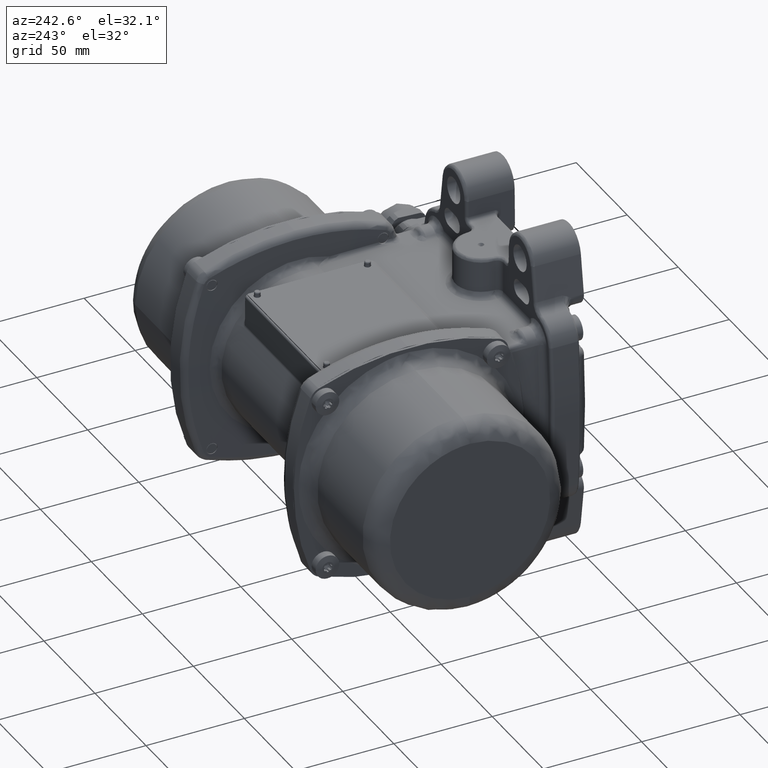
[diagram: clean part render]
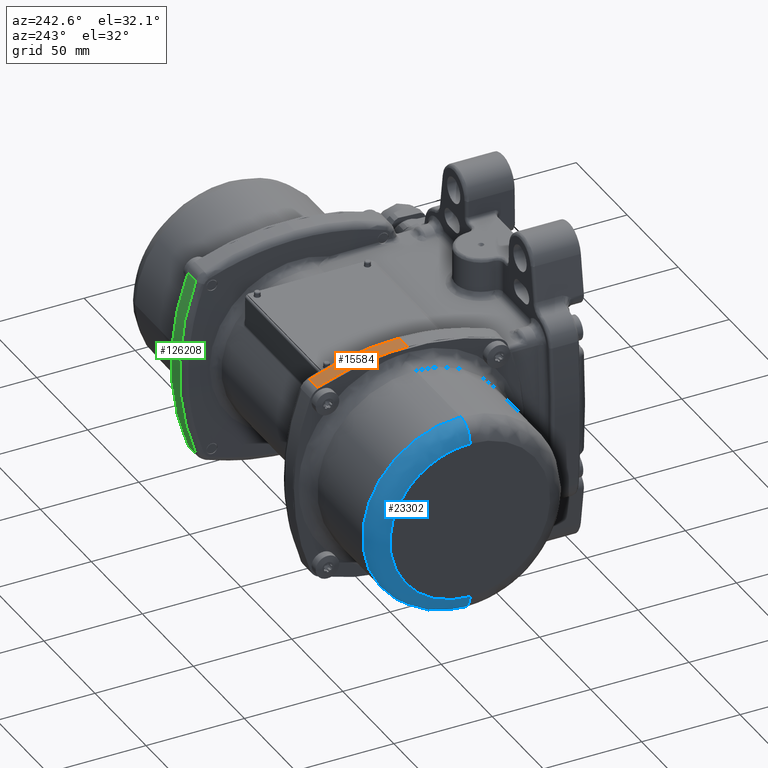
[diagram: same view with three faces highlighted in distinct colors, each labeled with its STEP entity id]
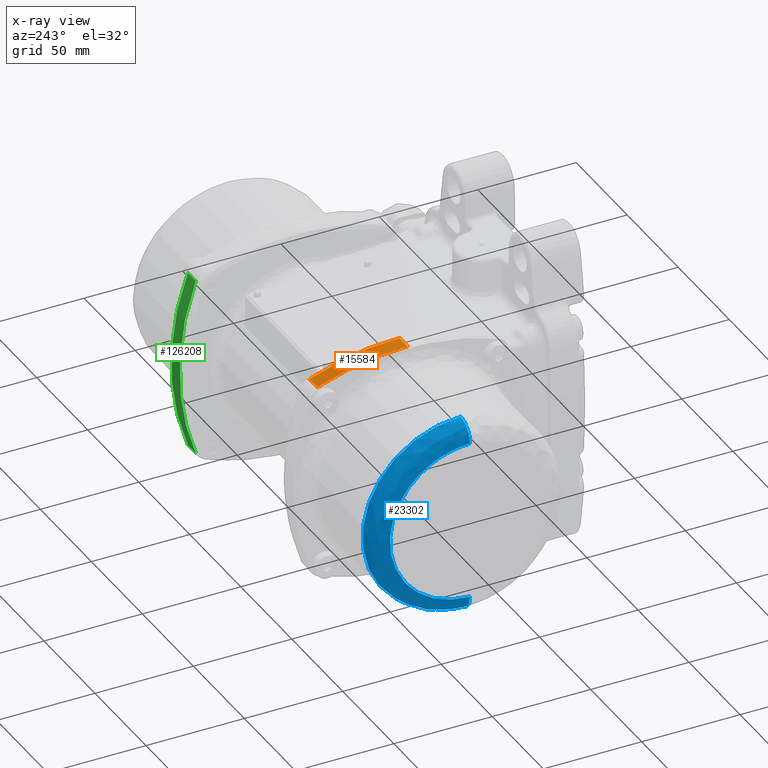
[diagram: x-ray of the same camera — body ghosted, the three highlighted faces saturated]
A machine part, auxiliary view with three faces highlighted in distinct colors.
The next image is the same camera in x-ray (body ghosted, the three faces saturated) — at least one of them is partly hidden behind the body in this view.
Their STEP definitions:

[orange] entity #15584 — the highlighted cylindrical surface (partial cylindrical patch) has radius 129 mm, axis along (1, -0, 0).
#1137 = CARTESIAN_POINT ( 'NONE',  ( -51.42247061277299700, 96.00000000000000000, 58.50000000015500500 ) ) ;
#1414 = VECTOR ( 'NONE', #129002, 1000.000000000000000 ) ;
#3584 = CYLINDRICAL_SURFACE ( 'NONE', #108919, 129.0000000000000000 ) ;
#4547 = VERTEX_POINT ( 'NONE', #5706 ) ;
#5706 = CARTESIAN_POINT ( 'NONE',  ( -59.50000000000000000, 96.00000000000000000, 58.50000000000000700 ) ) ;
#11479 = CARTESIAN_POINT ( 'NONE',  ( -51.60139193829760300, 134.5597084049933900, 52.66421566935270000 ) ) ;
#11971 = CARTESIAN_POINT ( 'NONE',  ( -51.53921369122409900, 127.0327609583802100, 54.77267411939830300 ) ) ;
#12998 = CARTESIAN_POINT ( 'NONE',  ( -51.42247398630970400, 97.97487465752219300, 58.49989616555880200 ) ) ;
#13008 = EDGE_CURVE ( 'NONE', #4547, #106303, #94930, .T. ) ;
#15584 = ADVANCED_FACE ( 'NONE', ( #34948 ), #3584, .T. ) ;
#22446 = VERTEX_POINT ( 'NONE', #138433 ) ;
#22574 = CARTESIAN_POINT ( 'NONE',  ( -70.50000000000000000, 141.9816342187540100, 50.02671618596740200 ) ) ;
#23365 = CARTESIAN_POINT ( 'NONE',  ( -51.42247061277171100, 96.00226472994481200, 58.50000000012928300 ) ) ;
#28065 = EDGE_CURVE ( 'NONE', #22446, #106303, #104835, .T. ) ;
#31732 = CARTESIAN_POINT ( 'NONE',  ( -59.50000000000000000, 141.9816342187540100, 50.02671618596740200 ) ) ;
#32807 = LINE ( 'NONE', #22574, #1414 ) ;
#34948 = FACE_OUTER_BOUND ( 'NONE', #61893, .T. ) ;
#35705 = CARTESIAN_POINT ( 'NONE',  ( -51.42981408446059500, 103.8911304420094000, 58.27349483533709700 ) ) ;
#48092 = CARTESIAN_POINT ( 'NONE',  ( -51.51236919346389700, 123.2346696412456000, 55.65252669724360100 ) ) ;
#48566 = CARTESIAN_POINT ( 'NONE',  ( -51.42247061277299700, 96.00000000000000000, 58.50000000015500500 ) ) ;
#52156 = DIRECTION ( 'NONE',  ( 0.0000000000000000000, 0.0000000000000000000, 1.000000000000000000 ) ) ;
#54668 = ORIENTED_EDGE ( 'NONE', *, *, #13008, .T. ) ;
#55044 = VERTEX_POINT ( 'NONE', #31732 ) ;
#57864 = DIRECTION ( 'NONE',  ( 1.000000000000000000, -1.004618355095570000E-033, 0.0000000000000000000 ) ) ;
#57926 = CARTESIAN_POINT ( 'NONE',  ( -51.63671979496130100, 138.2885947544599800, 51.43563194486500100 ) ) ;
#61893 = EDGE_LOOP ( 'NONE', ( #149899, #54668, #120582, #115006 ) ) ;
#63236 = DIRECTION ( 'NONE',  ( 1.000000000000000000, -1.004618355095570000E-033, 0.0000000000000000000 ) ) ;
#71817 = CARTESIAN_POINT ( 'NONE',  ( -51.42395315197219900, 99.95426530016479200, 58.45443651807919800 ) ) ;
#82007 = VECTOR ( 'NONE', #57864, 1000.000000000000000 ) ;
#88240 = DIRECTION ( 'NONE',  ( 1.000000000000000000, -1.004618355095570000E-033, 0.0000000000000000000 ) ) ;
#88641 = AXIS2_PLACEMENT_3D ( 'NONE', #111581, #88240, #52156 ) ;
#94101 = CARTESIAN_POINT ( 'NONE',  ( -51.45144845972689800, 111.7031035215622000, 57.60059974179079500 ) ) ;
#94930 = LINE ( 'NONE', #150913, #82007 ) ;
#104835 = B_SPLINE_CURVE_WITH_KNOTS ( 'NONE', 3,
 ( #129286, #57926, #11479, #11971, #48092, #130818, #94101, #105974, #35705, #71817, #12998, #141168, #23365, #1137 ),
 .UNSPECIFIED., .F., .F.,
 ( 4, 2, 2, 2, 2, 2, 4 ),
 ( 0.0000000000000000000, 0.2499640445783380100, 0.4999280891566763600, 0.7498921337350140700, 0.8748741560241840600, 0.9998561783133529400, 1.000000000000000000 ),
 .UNSPECIFIED. ) ;
#105974 = CARTESIAN_POINT ( 'NONE',  ( -51.43418756271319800, 105.8506742284850000, 58.13826023329180300 ) ) ;
#106303 = VERTEX_POINT ( 'NONE', #48566 ) ;
#107974 = CIRCLE ( 'NONE', #88641, 129.0000000000000000 ) ;
#108702 = EDGE_CURVE ( 'NONE', #55044, #4547, #107974, .T. ) ;
#108919 = AXIS2_PLACEMENT_3D ( 'NONE', #110262, #63236, #124279 ) ;
#110262 = CARTESIAN_POINT ( 'NONE',  ( -70.50000000000000000, 96.00000000000000000, -70.50000000000000000 ) ) ;
#111581 = CARTESIAN_POINT ( 'NONE',  ( -59.50000000000000000, 96.00000000000000000, -70.50000000000000000 ) ) ;
#115006 = ORIENTED_EDGE ( 'NONE', *, *, #125997, .T. ) ;
#120582 = ORIENTED_EDGE ( 'NONE', *, *, #28065, .F. ) ;
#124279 = DIRECTION ( 'NONE',  ( 0.0000000000000000000, 0.0000000000000000000, 1.000000000000000000 ) ) ;
#125997 = EDGE_CURVE ( 'NONE', #22446, #55044, #32807, .T. ) ;
#129002 = DIRECTION ( 'NONE',  ( -1.000000000000000000, 1.004618355095570000E-033, -0.0000000000000000000 ) ) ;
#129286 = CARTESIAN_POINT ( 'NONE',  ( -51.67570246307530400, 141.9816342187540100, 50.02671618596740200 ) ) ;
#130818 = CARTESIAN_POINT ( 'NONE',  ( -51.46848223554069800, 115.5698404233076100, 57.06648685439620300 ) ) ;
#138433 = CARTESIAN_POINT ( 'NONE',  ( -51.67570246307530400, 141.9816342187540100, 50.02671618596740200 ) ) ;
#141168 = CARTESIAN_POINT ( 'NONE',  ( -51.42247061470272500, 96.00452946837154400, 58.49999994036042500 ) ) ;
#149899 = ORIENTED_EDGE ( 'NONE', *, *, #108702, .T. ) ;
#150913 = CARTESIAN_POINT ( 'NONE',  ( -70.50000000000000000, 96.00000000000000000, 58.50000000000000700 ) ) ;

[blue] entity #23302 — the highlighted face is a freeform B-spline surface patch.
#8304 = VERTEX_POINT ( 'NONE', #106518 ) ;
#8403 = CARTESIAN_POINT ( 'NONE',  ( -120.4999999999999700, 95.99999999999991500, -40.70000000000021600 ) ) ;
#10928 = CARTESIAN_POINT ( 'NONE',  ( -116.6892352261675800, 195.8000000000003000, -49.90000000000042500 ) ) ;
#17457 = CARTESIAN_POINT ( 'NONE',  ( -120.5000000000000000, 96.00000000000000000, -40.70000000000000300 ) ) ;
#18700 = EDGE_CURVE ( 'NONE', #8304, #131584, #20038, .T. ) ;
#20038 = CIRCLE ( 'NONE', #25046, 9.199999999999999300 ) ;
#20262 = CARTESIAN_POINT ( 'NONE',  ( -120.5000000000000900, 188.1784704523353500, -46.08923522616792900 ) ) ;
#23302 = ADVANCED_FACE ( 'NONE', ( #137174 ), #28097, .T. ) ;
#25046 = AXIS2_PLACEMENT_3D ( 'NONE', #86015, #122791, #63284 ) ;
#26969 = DIRECTION ( 'NONE',  ( 1.000000000000000000, 1.213635377677980000E-015, 2.534600298297690200E-016 ) ) ;
#28097 =( BOUNDED_SURFACE ( )  B_SPLINE_SURFACE ( 3, 3, ( 
 ( #102365, #31600, #67214, #8403 ),
 ( #90961, #79566, #20262, #102861 ),
 ( #45515, #104900, #10928, #151949 ),
 ( #58374, #56861, #128233, #82132 ) ),
 .UNSPECIFIED., .F., .F., .F. ) 
 B_SPLINE_SURFACE_WITH_KNOTS ( ( 4, 4 ),
 ( 4, 4 ),
 ( 0.0000000000000000000, 1.000000000000000000 ),
 ( 0.0000000000000000000, 1.000000000000000000 ),
 .UNSPECIFIED. ) 
 GEOMETRIC_REPRESENTATION_ITEM ( )  RATIONAL_B_SPLINE_SURFACE ( (
 ( 1.000000000000000000, 0.3333333333333326500, 0.3333333333333326500, 1.000000000000000000),
 ( 0.8047378541243652700, 0.2682459513747878500, 0.2682459513747878500, 0.8047378541243652700),
 ( 0.8047378541243652700, 0.2682459513747878500, 0.2682459513747878500, 0.8047378541243652700),
 ( 1.000000000000000000, 0.3333333333333326500, 0.3333333333333326500, 1.000000000000000000) ) ) 
 REPRESENTATION_ITEM ( '' )  SURFACE ( )  );
#28099 = EDGE_CURVE ( 'NONE', #76732, #76216, #50939, .T. ) ;
#31600 = CARTESIAN_POINT ( 'NONE',  ( -120.5000000000000900, 177.4000000000003800, 40.69999999999999600 ) ) ;
#32127 = EDGE_CURVE ( 'NONE', #131584, #76216, #57935, .T. ) ;
#38773 = DIRECTION ( 'NONE',  ( 0.0000000000000000000, 0.0000000000000000000, 1.000000000000000000 ) ) ;
#40517 = ORIENTED_EDGE ( 'NONE', *, *, #32127, .F. ) ;
#45515 = CARTESIAN_POINT ( 'NONE',  ( -116.6892352261675100, 96.00000000000000000, 49.89999999999999100 ) ) ;
#50316 = CARTESIAN_POINT ( 'NONE',  ( -111.2999999999999800, 96.00000000000004300, -49.90000000000011200 ) ) ;
#50939 = CIRCLE ( 'NONE', #84260, 9.199999999999999300 ) ;
#52551 = CARTESIAN_POINT ( 'NONE',  ( -120.5000000000001000, 177.4000000000003500, 40.70000000000000300 ) ) ;
#56861 = CARTESIAN_POINT ( 'NONE',  ( -111.3000000000001300, 195.8000000000004100, 49.89999999999999100 ) ) ;
#57935 = CIRCLE ( 'NONE', #93576, 49.89999999999999900 ) ;
#58374 = CARTESIAN_POINT ( 'NONE',  ( -111.3000000000000100, 96.00000000000000000, 49.89999999999999900 ) ) ;
#63284 = DIRECTION ( 'NONE',  ( 0.0000000000000000000, 0.0000000000000000000, -1.000000000000000000 ) ) ;
#65681 = ORIENTED_EDGE ( 'NONE', *, *, #28099, .T. ) ;
#67214 = CARTESIAN_POINT ( 'NONE',  ( -120.5000000000000700, 177.4000000000003200, -40.70000000000035800 ) ) ;
#74755 = CARTESIAN_POINT ( 'NONE',  ( -120.5000000000000000, 96.00000000000000000, 40.70000000000000300 ) ) ;
#76216 = VERTEX_POINT ( 'NONE', #89130 ) ;
#76732 = VERTEX_POINT ( 'NONE', #86814 ) ;
#79566 = CARTESIAN_POINT ( 'NONE',  ( -120.5000000000001100, 188.1784704523354300, 46.08923522616749600 ) ) ;
#81112 = EDGE_LOOP ( 'NONE', ( #144947, #81544, #65681, #40517 ) ) ;
#81544 = ORIENTED_EDGE ( 'NONE', *, *, #133379, .T. ) ;
#82132 = CARTESIAN_POINT ( 'NONE',  ( -111.2999999999999700, 95.99999999999990100, -49.90000000000020500 ) ) ;
#84260 = AXIS2_PLACEMENT_3D ( 'NONE', #85731, #96631, #38773 ) ;
#85731 = CARTESIAN_POINT ( 'NONE',  ( -111.3000000000000000, 96.00000000000000000, 40.70000000000000300 ) ) ;
#86015 = CARTESIAN_POINT ( 'NONE',  ( -111.2999999999999700, 96.00000000000001400, -40.70000000000020900 ) ) ;
#86814 = CARTESIAN_POINT ( 'NONE',  ( -120.5000000000000000, 96.00000000000000000, 40.70000000000000300 ) ) ;
#89130 = CARTESIAN_POINT ( 'NONE',  ( -111.3000000000000100, 96.00000000000000000, 49.89999999999989900 ) ) ;
#90961 = CARTESIAN_POINT ( 'NONE',  ( -120.4999999999999900, 96.00000000000000000, 46.08923522616752400 ) ) ;
#93576 = AXIS2_PLACEMENT_3D ( 'NONE', #98741, #26969, #121514 ) ;
#96631 = DIRECTION ( 'NONE',  ( -1.213635377677980000E-015, 1.000000000000000000, -2.806757854662779800E-017 ) ) ;
#98741 = CARTESIAN_POINT ( 'NONE',  ( -111.3000000000000000, 96.00000000000000000, -1.027586208201325900E-013 ) ) ;
#102365 = CARTESIAN_POINT ( 'NONE',  ( -120.5000000000000000, 95.99999999999998600, 40.70000000000000300 ) ) ;
#102861 = CARTESIAN_POINT ( 'NONE',  ( -120.4999999999999400, 95.99999999999990100, -46.08923522616774400 ) ) ;
#104900 = CARTESIAN_POINT ( 'NONE',  ( -116.6892352261676400, 195.8000000000003800, 49.89999999999999100 ) ) ;
#106518 = CARTESIAN_POINT ( 'NONE',  ( -120.5000000000000000, 96.00000000000000000, -40.70000000000000300 ) ) ;
#121514 = DIRECTION ( 'NONE',  ( -2.781119801165221900E-016, 0.0000000000000000000, 1.000000000000000000 ) ) ;
#122791 = DIRECTION ( 'NONE',  ( 1.213635377677980000E-015, -1.000000000000000000, -9.439710136810752200E-017 ) ) ;
#123402 = CARTESIAN_POINT ( 'NONE',  ( -120.5000000000000700, 177.4000000000002900, -40.70000000000033700 ) ) ;
#124203 =( BOUNDED_CURVE ( )  B_SPLINE_CURVE ( 3, ( #17457, #123402, #52551, #74755 ),
 .UNSPECIFIED., .F., .T. ) 
 B_SPLINE_CURVE_WITH_KNOTS ( ( 4, 4 ),
 ( 0.0000000000000000000, 1.000000000000000000 ),
 .UNSPECIFIED. ) 
 CURVE ( )  GEOMETRIC_REPRESENTATION_ITEM ( )  RATIONAL_B_SPLINE_CURVE ( ( 1.000000000000000000, 0.3333333333333327600, 0.3333333333333327600, 1.000000000000000000 ) ) 
 REPRESENTATION_ITEM ( '' )  );
#128233 = CARTESIAN_POINT ( 'NONE',  ( -111.3000000000000800, 195.8000000000003200, -49.90000000000039600 ) ) ;
#131584 = VERTEX_POINT ( 'NONE', #50316 ) ;
#133379 = EDGE_CURVE ( 'NONE', #8304, #76732, #124203, .T. ) ;
#137174 = FACE_OUTER_BOUND ( 'NONE', #81112, .T. ) ;
#144947 = ORIENTED_EDGE ( 'NONE', *, *, #18700, .F. ) ;
#151949 = CARTESIAN_POINT ( 'NONE',  ( -116.6892352261674800, 95.99999999999990100, -49.90000000000019000 ) ) ;

[green] entity #126208 — the highlighted cylindrical surface (partial cylindrical patch) has radius 129 mm, axis along (1, -0, 0).
#5123 = CYLINDRICAL_SURFACE ( 'NONE', #17854, 129.0000000000000000 ) ;
#6593 = EDGE_CURVE ( 'NONE', #56533, #148637, #116653, .T. ) ;
#7547 = CARTESIAN_POINT ( 'NONE',  ( 51.67570246307540300, 146.0267161859674200, -45.98163421875390400 ) ) ;
#12691 = DIRECTION ( 'NONE',  ( 1.000000000000000000, -1.004618355095570000E-033, 0.0000000000000000000 ) ) ;
#13005 = CARTESIAN_POINT ( 'NONE',  ( 51.51176175067019600, 151.6723454766360000, -27.14310900963255000 ) ) ;
#14741 = DIRECTION ( 'NONE',  ( 0.0000000000000000000, 0.0000000000000000000, 1.000000000000000000 ) ) ;
#17567 = VERTEX_POINT ( 'NONE', #117518 ) ;
#17854 = AXIS2_PLACEMENT_3D ( 'NONE', #106188, #12691, #14741 ) ;
#24759 = LINE ( 'NONE', #27116, #89436 ) ;
#25939 = CARTESIAN_POINT ( 'NONE',  ( 51.45144845972710400, 153.6005997417920000, 15.70310352155050100 ) ) ;
#26924 = CARTESIAN_POINT ( 'NONE',  ( 51.42246388311510000, 154.5002071321225100, -3.929366669194565500 ) ) ;
#27116 = CARTESIAN_POINT ( 'NONE',  ( -70.50000000000000000, 146.0267161859674200, -45.98163421875390400 ) ) ;
#28224 = CARTESIAN_POINT ( 'NONE',  ( 59.50000000000000000, 146.0267161859674200, -45.98163421875390400 ) ) ;
#35501 = EDGE_CURVE ( 'NONE', #17567, #117097, #120276, .T. ) ;
#36002 = DIRECTION ( 'NONE',  ( 0.0000000000000000000, 0.0000000000000000000, 1.000000000000000000 ) ) ;
#38777 = CARTESIAN_POINT ( 'NONE',  ( 51.67570246307540300, 146.0267161859670200, 45.98163421875430100 ) ) ;
#52354 = DIRECTION ( 'NONE',  ( 1.000000000000000000, -1.004618355095570000E-033, 0.0000000000000000000 ) ) ;
#56533 = VERTEX_POINT ( 'NONE', #64038 ) ;
#60459 = CARTESIAN_POINT ( 'NONE',  ( 51.60139193829780200, 148.6642156693562000, 38.55970840497955300 ) ) ;
#60954 = CARTESIAN_POINT ( 'NONE',  ( 51.42247398630989600, 154.4998961655590200, 1.974874657518819900 ) ) ;
#62568 = LINE ( 'NONE', #131038, #119871 ) ;
#64038 = CARTESIAN_POINT ( 'NONE',  ( 51.67570246307540300, 146.0267161859670200, 45.98163421875430100 ) ) ;
#69696 = AXIS2_PLACEMENT_3D ( 'NONE', #106760, #95391, #36002 ) ;
#71590 = FACE_OUTER_BOUND ( 'NONE', #102356, .T. ) ;
#72327 = CARTESIAN_POINT ( 'NONE',  ( 51.51236919346409600, 151.6525266972449800, 27.23466964123800000 ) ) ;
#73344 = CARTESIAN_POINT ( 'NONE',  ( 51.45110505430049800, 153.6113498475334900, -15.61107220956455100 ) ) ;
#74369 = CARTESIAN_POINT ( 'NONE',  ( 51.46800556643569300, 153.0815900200684900, -19.47169786473385100 ) ) ;
#84712 = CARTESIAN_POINT ( 'NONE',  ( 51.43418756271339700, 154.1382602332909900, 9.850674228491419300 ) ) ;
#85225 = CARTESIAN_POINT ( 'NONE',  ( 51.53860866247159600, 150.7928768004455000, -30.95389682305524600 ) ) ;
#89436 = VECTOR ( 'NONE', #52354, 1000.000000000000000 ) ;
#94064 = ORIENTED_EDGE ( 'NONE', *, *, #97072, .T. ) ;
#95299 = DIRECTION ( 'NONE',  ( 1.000000000000000000, -1.004618355095570000E-033, 0.0000000000000000000 ) ) ;
#95391 = DIRECTION ( 'NONE',  ( -1.000000000000000000, 1.004618355095570000E-033, -0.0000000000000000000 ) ) ;
#97072 = EDGE_CURVE ( 'NONE', #56533, #17567, #62568, .T. ) ;
#97156 = CARTESIAN_POINT ( 'NONE',  ( 51.67570246307540300, 146.0267161859674200, -45.98163421875390400 ) ) ;
#97667 = CARTESIAN_POINT ( 'NONE',  ( 51.53921369122429800, 150.7726741193940000, 31.03276095839490300 ) ) ;
#102356 = EDGE_LOOP ( 'NONE', ( #94064, #118366, #147349, #109458 ) ) ;
#106188 = CARTESIAN_POINT ( 'NONE',  ( -70.50000000000000000, 25.50000000000000000, -2.743973290989330200E-013 ) ) ;
#106760 = CARTESIAN_POINT ( 'NONE',  ( 59.50000000000000000, 25.50000000000000000, -2.743973290989330200E-013 ) ) ;
#107987 = CARTESIAN_POINT ( 'NONE',  ( 51.42395315197239800, 154.4544365180794900, 3.954265300161525300 ) ) ;
#108484 = CARTESIAN_POINT ( 'NONE',  ( 51.63675478398970100, 147.4343673681082100, -42.29190945360969800 ) ) ;
#109004 = CARTESIAN_POINT ( 'NONE',  ( 51.63671979496169900, 147.4356319448608000, 42.28859475447065100 ) ) ;
#109458 = ORIENTED_EDGE ( 'NONE', *, *, #6593, .F. ) ;
#114124 = EDGE_CURVE ( 'NONE', #148637, #117097, #24759, .T. ) ;
#116653 = B_SPLINE_CURVE_WITH_KNOTS ( 'NONE', 3,
 ( #38777, #109004, #60459, #97667, #72327, #119441, #25939, #84712, #144212, #107987, #60954, #26924, #132338, #73344, #74369, #13005, #85225, #143185, #108484, #97156 ),
 .UNSPECIFIED., .F., .F.,
 ( 4, 2, 2, 2, 2, 2, 2, 2, 2, 4 ),
 ( 0.0000000000000000000, 0.1250000000000000300, 0.2500000000000002200, 0.3750000000000001100, 0.4375000000000000600, 0.5000000000000005600, 0.6250000000000004400, 0.7500000000000002200, 0.8750000000000001100, 1.000000000000000000 ),
 .UNSPECIFIED. ) ;
#117097 = VERTEX_POINT ( 'NONE', #28224 ) ;
#117518 = CARTESIAN_POINT ( 'NONE',  ( 59.50000000000000000, 146.0267161859670200, 45.98163421875430100 ) ) ;
#118366 = ORIENTED_EDGE ( 'NONE', *, *, #35501, .T. ) ;
#119441 = CARTESIAN_POINT ( 'NONE',  ( 51.46848223554089700, 153.0664868543945000, 19.56984042331605200 ) ) ;
#119871 = VECTOR ( 'NONE', #95299, 1000.000000000000000 ) ;
#120276 = CIRCLE ( 'NONE', #69696, 129.0000000000000000 ) ;
#126208 = ADVANCED_FACE ( 'NONE', ( #71590 ), #5123, .T. ) ;
#131038 = CARTESIAN_POINT ( 'NONE',  ( -70.50000000000000000, 146.0267161859670200, 45.98163421875420200 ) ) ;
#132338 = CARTESIAN_POINT ( 'NONE',  ( 51.42833048294320300, 154.3206482748560100, -7.839905186623511200 ) ) ;
#143185 = CARTESIAN_POINT ( 'NONE',  ( 51.60105501473000100, 148.6759498042020200, -38.52446099943140500 ) ) ;
#144212 = CARTESIAN_POINT ( 'NONE',  ( 51.42981408446079400, 154.2734948353370000, 7.891130442013590600 ) ) ;
#147349 = ORIENTED_EDGE ( 'NONE', *, *, #114124, .F. ) ;
#148637 = VERTEX_POINT ( 'NONE', #7547 ) ;